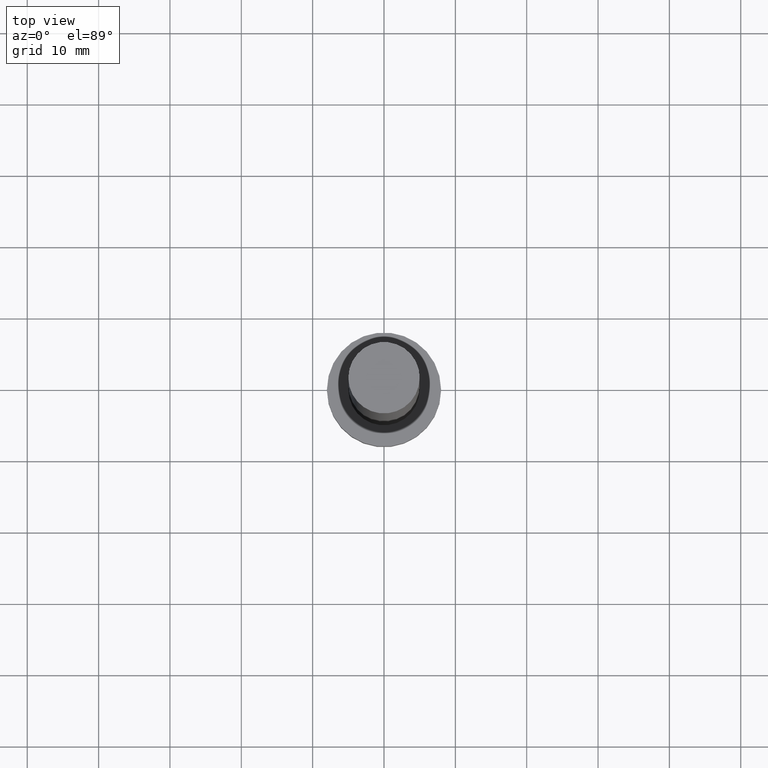
[diagram: clean part render]
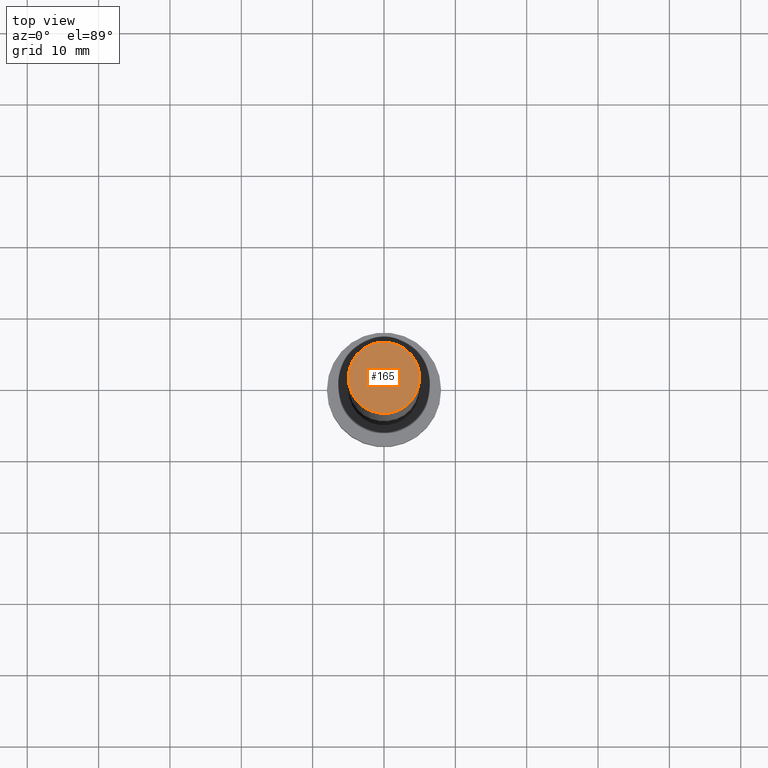
[diagram: same view with one face highlighted and labeled with its STEP entity id]
A machine part, top view. The second image highlights one B-rep face of the part: STEP entity #165.
In plain terms, the highlighted planar face has unit normal (0, 0, 1).
Its self-contained STEP definition (entity closure, byte-faithful):
#6 = DIRECTION ( 'NONE',  ( 1.000000000000000000, 0.000000000000000000, 0.000000000000000000 ) ) ;
#20 = CIRCLE ( 'NONE', #138, 5.000000000000000888 ) ;
#24 = DIRECTION ( 'NONE',  ( 1.000000000000000000, 0.000000000000000000, -0.000000000000000000 ) ) ;
#36 = DIRECTION ( 'NONE',  ( 1.000000000000000000, 0.000000000000000000, 0.000000000000000000 ) ) ;
#38 = AXIS2_PLACEMENT_3D ( 'NONE', #199, #220, #24 ) ;
#59 = FACE_OUTER_BOUND ( 'NONE', #66, .T. ) ;
#66 = EDGE_LOOP ( 'NONE', ( #91, #253 ) ) ;
#73 = CIRCLE ( 'NONE', #74, 5.000000000000000888 ) ;
#74 = AXIS2_PLACEMENT_3D ( 'NONE', #239, #125, #6 ) ;
#89 = EDGE_CURVE ( 'NONE', #208, #136, #20, .T. ) ;
#91 = ORIENTED_EDGE ( 'NONE', *, *, #89, .T. ) ;
#96 = CARTESIAN_POINT ( 'NONE',  ( 0.000000000000000000, 0.000000000000000000, 100.0000000000000000 ) ) ;
#123 = CARTESIAN_POINT ( 'NONE',  ( 5.000000000000000888, 6.123233995736767268E-16, 100.0000000000000000 ) ) ;
#125 = DIRECTION ( 'NONE',  ( 0.000000000000000000, 0.000000000000000000, 1.000000000000000000 ) ) ;
#136 = VERTEX_POINT ( 'NONE', #123 ) ;
#138 = AXIS2_PLACEMENT_3D ( 'NONE', #96, #213, #36 ) ;
#143 = CARTESIAN_POINT ( 'NONE',  ( -5.000000000000000888, 0.000000000000000000, 100.0000000000000000 ) ) ;
#145 = PLANE ( 'NONE',  #38 ) ;
#165 = ADVANCED_FACE ( 'NONE', ( #59 ), #145, .T. ) ;
#199 = CARTESIAN_POINT ( 'NONE',  ( 0.000000000000000000, 0.000000000000000000, 100.0000000000000000 ) ) ;
#208 = VERTEX_POINT ( 'NONE', #143 ) ;
#211 = EDGE_CURVE ( 'NONE', #136, #208, #73, .T. ) ;
#213 = DIRECTION ( 'NONE',  ( 0.000000000000000000, 0.000000000000000000, 1.000000000000000000 ) ) ;
#220 = DIRECTION ( 'NONE',  ( 0.000000000000000000, 0.000000000000000000, 1.000000000000000000 ) ) ;
#239 = CARTESIAN_POINT ( 'NONE',  ( 0.000000000000000000, 0.000000000000000000, 100.0000000000000000 ) ) ;
#253 = ORIENTED_EDGE ( 'NONE', *, *, #211, .T. ) ;